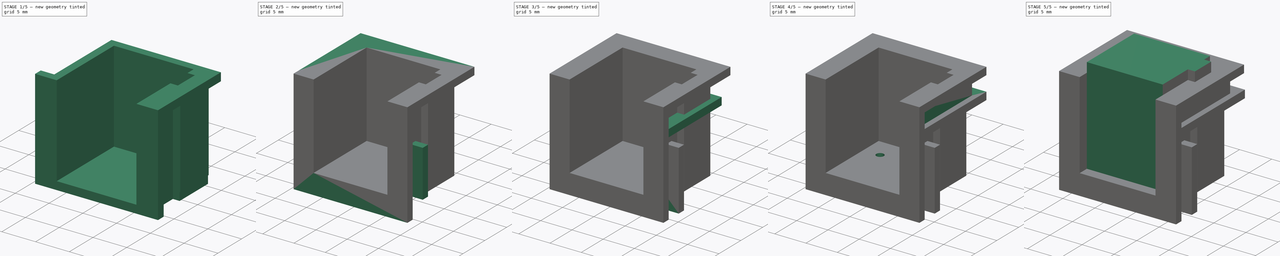
[diagram: build sequence overview — one tinted view per stage of 5, left to right]
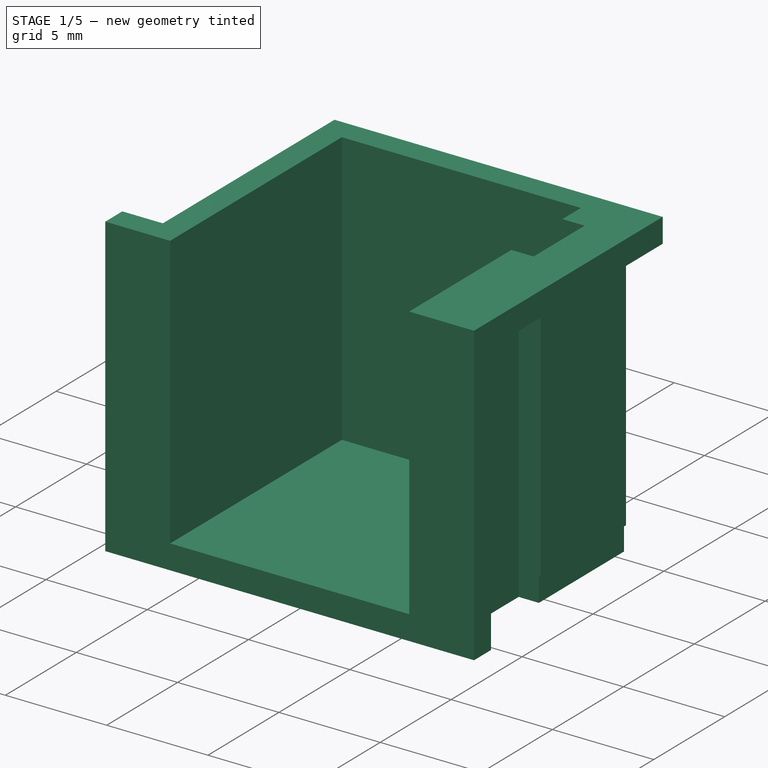
[diagram: stage 1 of 5 — iso view after this stage's code; geometry added in this stage tinted green]
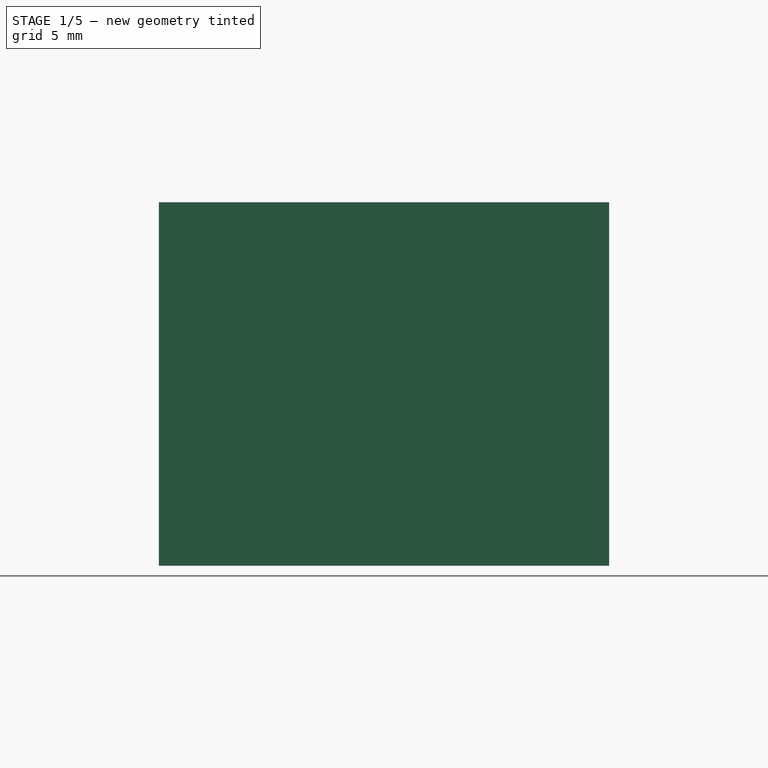
[diagram: stage 1 of 5 — front view after this stage's code; geometry added in this stage tinted green]
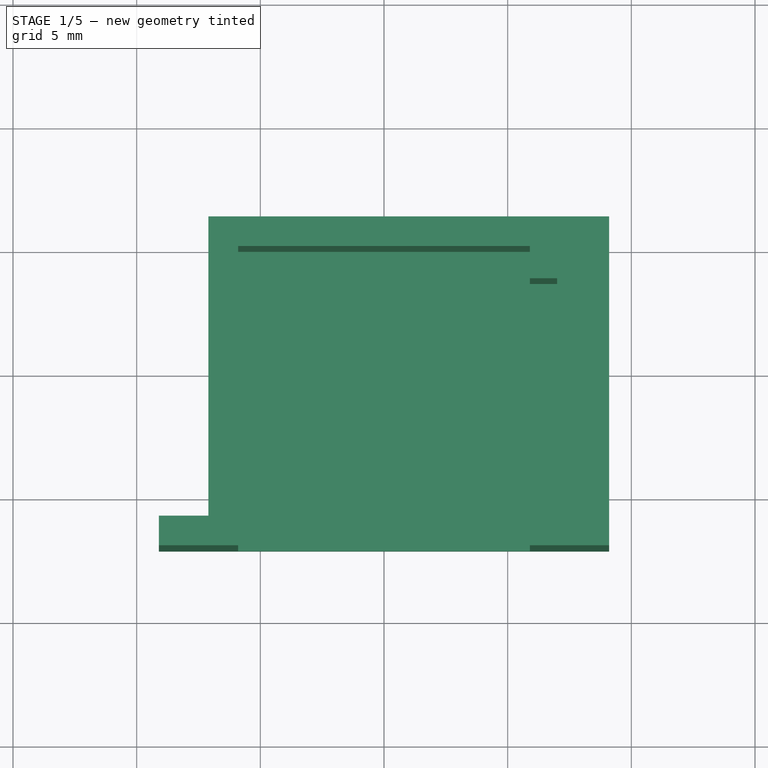
[diagram: stage 1 of 5 — top view after this stage's code; geometry added in this stage tinted green]
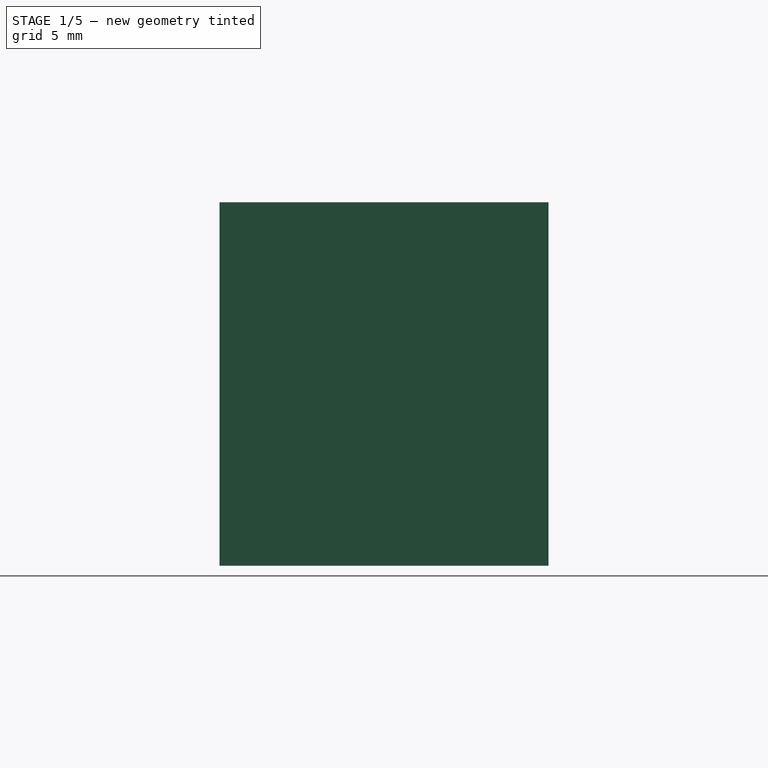
[diagram: stage 1 of 5 — right view after this stage's code; geometry added in this stage tinted green]
FCSTD DOCUMENT  (FreeCAD 0.16R6706 (Git))
Label: EibSteckeraufnahme V1.0
License: All rights reserved
LicenseURL: http://de.wikipedia.org/wiki/Alle_Rechte_vorbehalten
objects: Sketcher::SketchObject×27, PartDesign::Pad×22, PartDesign::Pocket×5
note: 81 computed .brp shape members not serialized (recipe doc carries the construction recipe); baked Part::Feature solids carry a one-line shape summary decoded from their .brp

FEATURE [Sketcher::SketchObject] Sketch003
  Placement = pos=(0,0,0) rot=(1,0,0;3.14159rad)
  sketch-geometry (8):
    g0: LineSegment StartX=-7.1 StartY=-1.2 StartZ=0 EndX=-7.1 EndY=12.1 EndZ=0
    g1: LineSegment StartX=-7.1 StartY=12.1 StartZ=0 EndX=7.1 EndY=12.1 EndZ=0
    g2: LineSegment StartX=7.1 StartY=12.1 StartZ=0 EndX=7.1 EndY=6.1 EndZ=0
    g3: LineSegment StartX=7.1 StartY=6.1 StartZ=0 EndX=8.1 EndY=6.1 EndZ=0
    g4: LineSegment StartX=8.1 StartY=6.1 StartZ=0 EndX=8.1 EndY=0.1 EndZ=0
    g5: LineSegment StartX=8.1 StartY=0.1 StartZ=0 EndX=7.1 EndY=0.1 EndZ=0
    g6: LineSegment StartX=7.1 StartY=0.1 StartZ=0 EndX=7.1 EndY=-1.2 EndZ=0
    g7: LineSegment StartX=7.1 StartY=-1.2 StartZ=0 EndX=-7.1 EndY=-1.2 EndZ=0
  constraints (24):
    c: Vertical(g0)
    c: Coincident(g0,g1)
    c: Horizontal(g1)
    c: Coincident(g1,g2)
    c: Vertical(g2)
    c: Coincident(g2,g3)
    c: Horizontal(g3)
    c: Coincident(g3,g4)
    c: Vertical(g4)
    c: Coincident(g4,g5)
    c: Horizontal(g5)
    c: Coincident(g5,g6)
    c: Vertical(g6)
    c: Coincident(g6,g7)
    c: Coincident(g7,g0)
    c: Horizontal(g7)
    c: DistanceX(g1) = 14.2
    c: DistanceX(g7) = -14.2
    c: DistanceY(g0) = 13.3
    c: DistanceX(g-1,g0) = -7.1
    c: DistanceY(g-1,g0) = -1.2
    c: DistanceY(g-1,g5) = 0.1
    c: DistanceY(g6,g2) = 7.3
    c: DistanceX(g5,g4) = 1
FEATURE [PartDesign::Pad] Pad003
  Length = 1.2
  Length2 = 100
  Placement = pos=(0,0,0) rot=(1,0,0;3.14159rad)
  Sketch = -> Sketch003
  Type = 0
FEATURE [Sketcher::SketchObject] Sketch004
  ExternalGeometry = -> [Pad003]
  Support = -> Pad003 [Face9]
  sketch-geometry (16):
    g0: LineSegment StartX=-7.1 StartY=-12.1 StartZ=0 EndX=-7.1 EndY=1.2 EndZ=0
    g1: LineSegment StartX=-7.1 StartY=1.2 StartZ=0 EndX=7.1 EndY=1.2 EndZ=0
    g2: LineSegment StartX=7.1 StartY=1.2 StartZ=0 EndX=7.1 EndY=-0.1 EndZ=0
    g3: LineSegment StartX=7.1 StartY=-0.1 StartZ=0 EndX=8.2 EndY=-0.1 EndZ=0
    g4: LineSegment StartX=8.2 StartY=-0.1 StartZ=0 EndX=8.2 EndY=-6.1 EndZ=0
    g5: LineSegment StartX=8.2 StartY=-6.1 StartZ=0 EndX=7.1 EndY=-6.1 EndZ=0
    g6: LineSegment StartX=7.1 StartY=-6.1 StartZ=0 EndX=7.1 EndY=-12.1 EndZ=0
    g7: LineSegment StartX=7.1 StartY=-12.1 StartZ=0 EndX=5.9 EndY=-12.1 EndZ=0
    g8: LineSegment StartX=5.9 StartY=-12.1 StartZ=0 EndX=5.9 EndY=-4.9 EndZ=0
    g9: LineSegment StartX=5.9 StartY=-4.9 StartZ=0 EndX=7 EndY=-4.9 EndZ=0
    g10: LineSegment StartX=7 StartY=-4.9 StartZ=0 EndX=7 EndY=-1.3 EndZ=0
    g11: LineSegment StartX=7 StartY=-1.3 StartZ=0 EndX=5.9 EndY=-1.3 EndZ=0
    g12: LineSegment StartX=5.9 StartY=-1.3 StartZ=0 EndX=5.9 EndY=0 EndZ=0
    g13: LineSegment StartX=5.9 StartY=0 StartZ=0 EndX=-5.9 EndY=0 EndZ=0
    g14: LineSegment StartX=-5.9 StartY=0 StartZ=0 EndX=-5.9 EndY=-12.1 EndZ=0
    g15: LineSegment StartX=-5.9 StartY=-12.1 StartZ=0 EndX=-7.1 EndY=-12.1 EndZ=0
  constraints (43):
    c: Coincident(g0,g-4)
    c: Vertical(g0)
    c: Coincident(g0,g1)
    c: Coincident(g1,g-3)
    c: Coincident(g1,g2)
    c: Coincident(g2,g-5)
    c: Coincident(g2,g3)
    c: Coincident(g5,g-7)
    c: Coincident(g5,g6)
    c: Coincident(g6,g-7)
    c: Coincident(g6,g7)
    c: Horizontal(g7)
    c: Coincident(g7,g8)
    c: Vertical(g8)
    c: Coincident(g8,g9)
    c: Horizontal(g9)
    c: Coincident(g9,g10)
    c: Vertical(g10)
    c: Coincident(g10,g11)
    c: Horizontal(g11)
    c: Coincident(g11,g12)
    c: Vertical(g12)
    c: Coincident(g12,g13)
    c: PointOnObject(g13,g-1)
    c: Horizontal(g13)
    c: Coincident(g13,g14)
    c: Vertical(g14)
    c: Coincident(g14,g15)
    c: Coincident(g15,g0)
    c: Horizontal(g15)
    c: DistanceX(g15,g15) = 1.2
    c: DistanceX(g7,g7) = 1.2
    c: DistanceY(g5,g9) = 1.2
    c: DistanceX(g9,g4) = 1.2
    c: DistanceY(g10,g2) = 1.2
    c: Coincident(g3,g4)
    c: Perpendicular(g4,g3)
    c: Coincident(g5,g4)
    c: DistanceX(g10,g3) = 1.2
    c: Perpendicular(g4,g5)
    c: DistanceX(g-5,g3) = 0.1
    c: Coincident(g0,g-4)
    c: DistanceX(g12,g2) = 1.2
FEATURE [PartDesign::Pad] Pad004
  Length = 13.5
  Length2 = 100
  Placement = pos=(0,0,0) rot=(1,0,0;3.14159rad)
  Sketch = -> Sketch004
  Type = 0
FEATURE [Sketcher::SketchObject] Sketch005
  ExternalGeometry = -> [Pad004]
  Placement = pos=(7.1,0,0) rot=(0.57735,-0.57735,0.57735;4.18879rad)
  Support = -> Pad004 [Face16]
  sketch-geometry (4):
    g0: LineSegment StartX=12.1 StartY=-13.5 StartZ=0 EndX=10.9 EndY=-13.5 EndZ=0
    g1: LineSegment StartX=10.9 StartY=-13.5 StartZ=0 EndX=10.9 EndY=1.2 EndZ=0
    g2: LineSegment StartX=10.9 StartY=1.2 StartZ=0 EndX=12.1 EndY=1.2 EndZ=0
    g3: LineSegment StartX=12.1 StartY=1.2 StartZ=0 EndX=12.1 EndY=-13.5 EndZ=0
  constraints (11):
    c: Coincident(g0,g1)
    c: Coincident(g1,g2)
    c: Coincident(g2,g3)
    c: Coincident(g3,g0)
    c: Horizontal(g0)
    c: Horizontal(g2)
    c: Vertical(g1)
    c: Vertical(g3)
    c: Coincident(g0,g-3)
    c: Coincident(g2,g-3)
    c: DistanceX(g0,g0) = 1.2
FEATURE [PartDesign::Pad] Pad005
  Length = 2
  Length2 = 100
  Placement = pos=(0,0,0) rot=(1,0,0;3.14159rad)
  Sketch = -> Sketch005
  Type = 0
FEATURE [Sketcher::SketchObject] Sketch006
  ExternalGeometry = -> [Pad005]
  Placement = pos=(-7.1,0,0) rot=(0.57735,0.57735,-0.57735;4.18879rad)
  Support = -> Pad005 [Face3]
  sketch-geometry (4):
    g0: LineSegment StartX=-12.1 StartY=-13.5 StartZ=0 EndX=-10.9 EndY=-13.5 EndZ=0
    g1: LineSegment StartX=-10.9 StartY=-13.5 StartZ=0 EndX=-10.9 EndY=1.2 EndZ=0
    g2: LineSegment StartX=-10.9 StartY=1.2 StartZ=0 EndX=-12.1 EndY=1.2 EndZ=0
    g3: LineSegment StartX=-12.1 StartY=1.2 StartZ=0 EndX=-12.1 EndY=-13.5 EndZ=0
  constraints (11):
    c: Coincident(g0,g1)
    c: Coincident(g1,g2)
    c: Coincident(g2,g3)
    c: Coincident(g3,g0)
    c: Horizontal(g0)
    c: Horizontal(g2)
    c: Vertical(g1)
    c: Vertical(g3)
    c: Coincident(g0,g-3)
    c: Coincident(g2,g-3)
    c: DistanceX(g2,g2) = 1.2
FEATURE [PartDesign::Pad] Pad006
  Length = 2
  Length2 = 100
  Placement = pos=(0,0,0) rot=(1,0,0;3.14159rad)
  Sketch = -> Sketch006
  Type = 0
FEATURE [Sketcher::SketchObject] Sketch007
  ExternalGeometry = -> [Pad006]
  Placement = pos=(0,0,13.5) rot=(0,0,1;0rad)
  Support = -> Pad006 [Face9]
  sketch-geometry (8):
    g0: LineSegment StartX=7.1 StartY=1.2 StartZ=0 EndX=7.1 EndY=-0.1 EndZ=0
    g1: LineSegment StartX=7.1 StartY=-0.1 StartZ=0 EndX=8.2 EndY=-0.1 EndZ=0
    g2: LineSegment StartX=8.2 StartY=-0.1 StartZ=0 EndX=8.2 EndY=-6.1 EndZ=0
    g3: LineSegment StartX=8.2 StartY=-6.1 StartZ=0 EndX=7.1 EndY=-6.1 EndZ=0
    g4: LineSegment StartX=7.1 StartY=-6.1 StartZ=0 EndX=7.1 EndY=-10.9 EndZ=0
    g5: LineSegment StartX=7.1 StartY=-10.9 StartZ=0 EndX=9.1 EndY=-10.9 EndZ=0
    g6: LineSegment StartX=9.1 StartY=-10.9 StartZ=0 EndX=9.1 EndY=1.2 EndZ=0
    g7: LineSegment StartX=9.1 StartY=1.2 StartZ=0 EndX=7.1 EndY=1.2 EndZ=0
  constraints (18):
    c: Coincident(g-5,g0)
    c: Coincident(g0,g-5)
    c: Coincident(g0,g1)
    c: Coincident(g1,g-3)
    c: Coincident(g1,g2)
    c: Coincident(g2,g-3)
    c: Coincident(g2,g3)
    c: Horizontal(g3)
    c: Coincident(g3,g4)
    c: Coincident(g4,g-4)
    c: Vertical(g4)
    c: Coincident(g4,g5)
    c: Coincident(g5,g-4)
    c: Coincident(g5,g6)
    c: Vertical(g6)
    c: Coincident(g6,g7)
    c: Coincident(g7,g0)
    c: Perpendicular(g6,g7)
FEATURE [PartDesign::Pad] Pad007
  Length = 1.2
  Length2 = 100
  Placement = pos=(0,0,0) rot=(1,0,0;3.14159rad)
  Reversed = true
  Sketch = -> Sketch007
  Type = 0
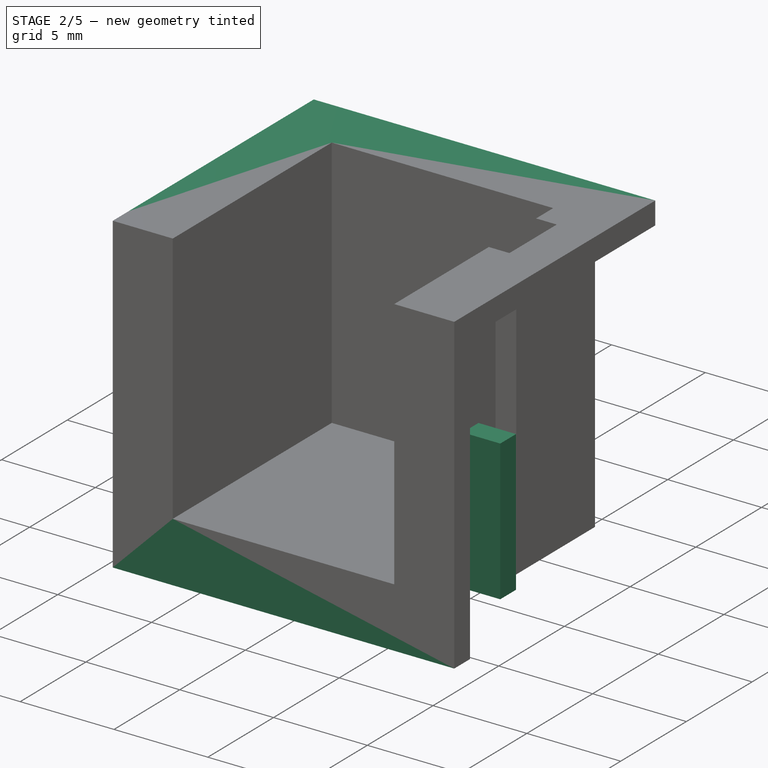
[diagram: stage 2 of 5 — iso view after this stage's code; geometry added in this stage tinted green]
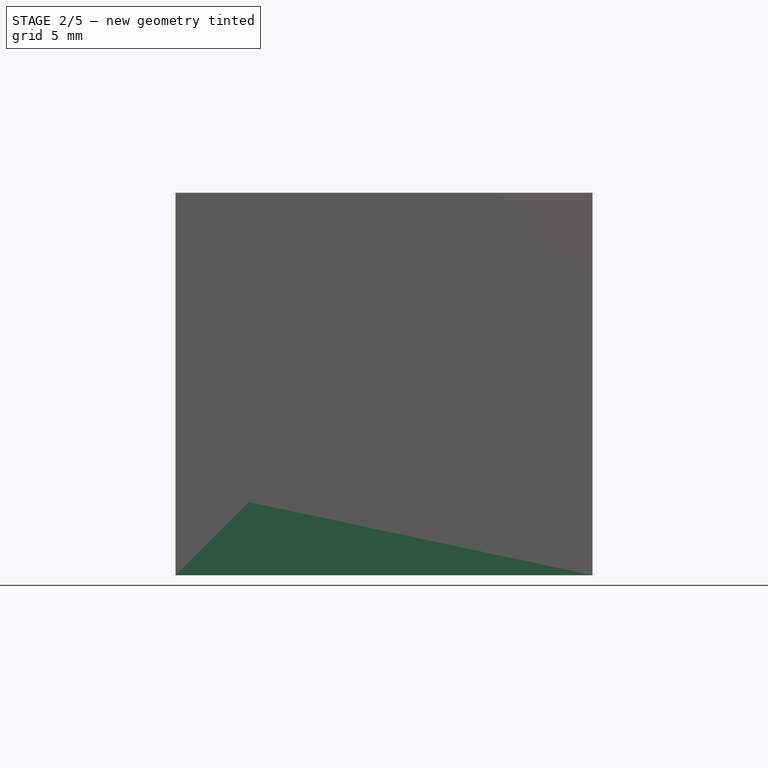
[diagram: stage 2 of 5 — front view after this stage's code; geometry added in this stage tinted green]
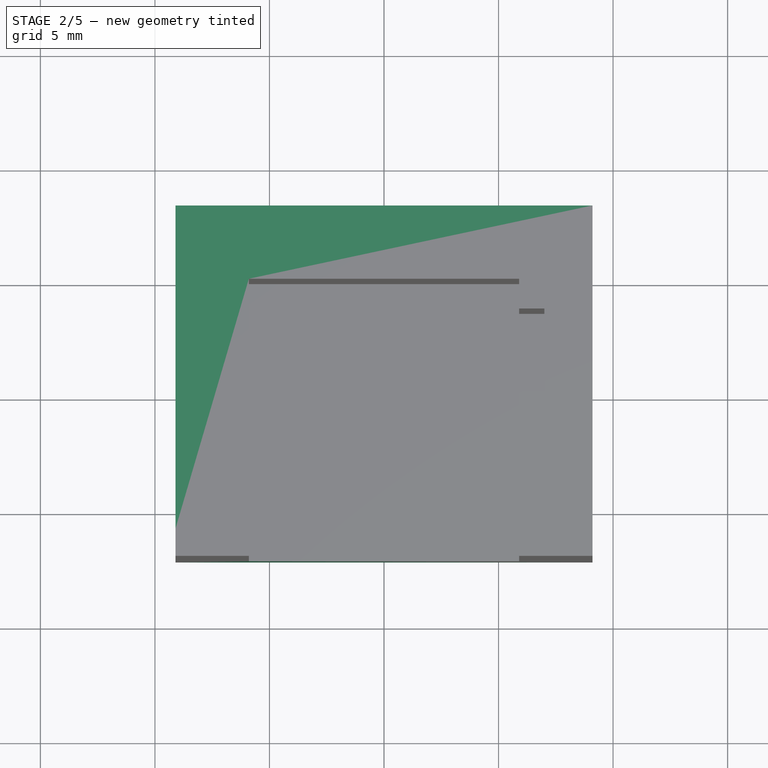
[diagram: stage 2 of 5 — top view after this stage's code; geometry added in this stage tinted green]
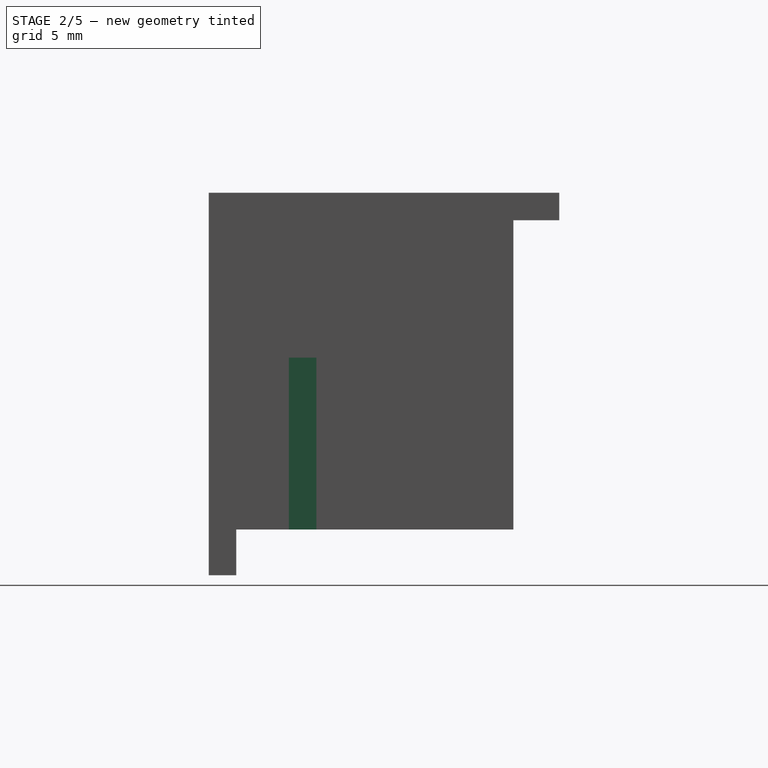
[diagram: stage 2 of 5 — right view after this stage's code; geometry added in this stage tinted green]
FEATURE [Sketcher::SketchObject] Sketch008
  ExternalGeometry = -> [Pad007]
  Placement = pos=(0,0,13.5) rot=(0,0,1;0rad)
  Support = -> Pad007 [Face23]
  sketch-geometry (4):
    g0: LineSegment StartX=-9.1 StartY=-10.9 StartZ=0 EndX=-7.1 EndY=-10.9 EndZ=0
    g1: LineSegment StartX=-7.1 StartY=-10.9 StartZ=0 EndX=-7.1 EndY=1.2 EndZ=0
    g2: LineSegment StartX=-7.1 StartY=1.2 StartZ=0 EndX=-9.1 EndY=1.2 EndZ=0
    g3: LineSegment StartX=-9.1 StartY=1.2 StartZ=0 EndX=-9.1 EndY=-10.9 EndZ=0
  constraints (9):
    c: Coincident(g-3,g0)
    c: Coincident(g0,g-4)
    c: Coincident(g0,g1)
    c: Coincident(g1,g-4)
    c: Coincident(g1,g2)
    c: Horizontal(g2)
    c: Coincident(g2,g3)
    c: Coincident(g3,g0)
    c: Perpendicular(g2,g3)
FEATURE [PartDesign::Pad] Pad008
  Length = 1.2
  Length2 = 100
  Placement = pos=(0,0,0) rot=(1,0,0;3.14159rad)
  Reversed = true
  Sketch = -> Sketch008
  Type = 0
FEATURE [Sketcher::SketchObject] Sketch009
  ExternalGeometry = -> [Pad008]
  Placement = pos=(0,1.2,0) rot=(-1,0,0;1.5708rad)
  Support = -> Pad008 [Face26]
  sketch-geometry (4):
    g0: LineSegment StartX=-9.1 StartY=-13.5 StartZ=0 EndX=-9.1 EndY=-12.3 EndZ=0
    g1: LineSegment StartX=-9.1 StartY=-12.3 StartZ=0 EndX=9.1 EndY=-12.3 EndZ=0
    g2: LineSegment StartX=9.1 StartY=-12.3 StartZ=0 EndX=9.1 EndY=-13.5 EndZ=0
    g3: LineSegment StartX=9.1 StartY=-13.5 StartZ=0 EndX=-9.1 EndY=-13.5 EndZ=0
  constraints (9):
    c: Coincident(g-3,g0)
    c: Coincident(g0,g-4)
    c: Coincident(g0,g1)
    c: Horizontal(g1)
    c: Coincident(g1,g2)
    c: Coincident(g2,g-3)
    c: Vertical(g2)
    c: Coincident(g2,g3)
    c: Coincident(g3,g0)
FEATURE [PartDesign::Pad] Pad009
  Length = 2
  Length2 = 100
  Placement = pos=(0,0,0) rot=(1,0,0;3.14159rad)
  Sketch = -> Sketch009
  Type = 0
FEATURE [Sketcher::SketchObject] Sketch010
  ExternalGeometry = -> [Pad009]
  Placement = pos=(0,0,-1.2) rot=(1,0,0;3.14159rad)
  Support = -> Pad009 [Face10]
  sketch-geometry (4):
    g0: LineSegment StartX=-9.1 StartY=12.1 StartZ=0 EndX=9.1 EndY=12.1 EndZ=0
    g1: LineSegment StartX=9.1 StartY=12.1 StartZ=0 EndX=9.1 EndY=10.9 EndZ=0
    g2: LineSegment StartX=9.1 StartY=10.9 StartZ=0 EndX=-9.1 EndY=10.9 EndZ=0
    g3: LineSegment StartX=-9.1 StartY=10.9 StartZ=0 EndX=-9.1 EndY=12.1 EndZ=0
  constraints (10):
    c: Coincident(g0,g1)
    c: Coincident(g1,g2)
    c: Coincident(g2,g3)
    c: Coincident(g3,g0)
    c: Horizontal(g0)
    c: Horizontal(g2)
    c: Vertical(g1)
    c: Vertical(g3)
    c: Coincident(g0,g-3)
    c: Coincident(g1,g-4)
FEATURE [PartDesign::Pad] Pad010
  Length = 2
  Length2 = 100
  Placement = pos=(0,0,0) rot=(1,0,0;3.14159rad)
  Sketch = -> Sketch010
  Type = 0
FEATURE [Sketcher::SketchObject] Sketch011
  ExternalGeometry = -> [Pad010]
  Placement = pos=(8.1,0,0) rot=(0.57735,-0.57735,0.57735;4.18879rad)
  Support = -> Pad010 [Face20]
  sketch-geometry (4):
    g0: LineSegment StartX=0.1 StartY=1.2 StartZ=0 EndX=6.1 EndY=1.2 EndZ=0
    g1: LineSegment StartX=6.1 StartY=1.2 StartZ=0 EndX=6.1 EndY=0 EndZ=0
    g2: LineSegment StartX=6.1 StartY=0 StartZ=0 EndX=0.1 EndY=0 EndZ=0
    g3: LineSegment StartX=0.1 StartY=0 StartZ=0 EndX=0.1 EndY=1.2 EndZ=0
  constraints (10):
    c: Coincident(g0,g1)
    c: Coincident(g1,g2)
    c: Coincident(g2,g3)
    c: Coincident(g3,g0)
    c: Horizontal(g0)
    c: Horizontal(g2)
    c: Vertical(g1)
    c: Vertical(g3)
    c: Coincident(g0,g-4)
    c: Coincident(g1,g-3)
FEATURE [PartDesign::Pad] Pad011
  Length = 0.1
  Length2 = 100
  Placement = pos=(0,0,0) rot=(1,0,0;3.14159rad)
  Sketch = -> Sketch011
  Type = 0
FEATURE [Sketcher::SketchObject] Sketch012
  ExternalGeometry = -> [Pad011]
  Placement = pos=(7.1,0,0) rot=(0.57735,-0.57735,0.57735;4.18879rad)
  Support = -> Pad011 [Face17]
  sketch-geometry (4):
    g0: LineSegment StartX=8.6 StartY=1.2 StartZ=0 EndX=7.4 EndY=1.2 EndZ=0
    g1: LineSegment StartX=7.4 StartY=1.2 StartZ=0 EndX=7.4 EndY=-6.3 EndZ=0
    g2: LineSegment StartX=7.4 StartY=-6.3 StartZ=0 EndX=8.6 EndY=-6.3 EndZ=0
    g3: LineSegment StartX=8.6 StartY=-6.3 StartZ=0 EndX=8.6 EndY=1.2 EndZ=0
  constraints (12):
    c: Coincident(g0,g1)
    c: Coincident(g1,g2)
    c: Coincident(g2,g3)
    c: Coincident(g3,g0)
    c: Horizontal(g0)
    c: Horizontal(g2)
    c: Vertical(g1)
    c: Vertical(g3)
    c: PointOnObject(g0,g-4)
    c: DistanceY(g-3,g2) = 6
    c: DistanceX(g2,g2) = 1.2
    c: DistanceX(g0,g-4) = 2.3
FEATURE [PartDesign::Pad] Pad012
  Length = 2
  Length2 = 100
  Placement = pos=(0,0,0) rot=(1,0,0;3.14159rad)
  Sketch = -> Sketch012
  Type = 0
FEATURE [Sketcher::SketchObject] Sketch013
  ExternalGeometry = -> [Pad012]
  Placement = pos=(-7.1,0,0) rot=(0.57735,0.57735,-0.57735;4.18879rad)
  Support = -> Pad012 [Face18]
  sketch-geometry (4):
    g0: LineSegment StartX=-7.4 StartY=-6.3 StartZ=0 EndX=-8.6 EndY=-6.3 EndZ=0
    g1: LineSegment StartX=-8.6 StartY=-6.3 StartZ=0 EndX=-8.6 EndY=1.2 EndZ=0
    g2: LineSegment StartX=-8.6 StartY=1.2 StartZ=0 EndX=-7.4 EndY=1.2 EndZ=0
    g3: LineSegment StartX=-7.4 StartY=1.2 StartZ=0 EndX=-7.4 EndY=-6.3 EndZ=0
  constraints (12):
    c: Coincident(g0,g1)
    c: Coincident(g1,g2)
    c: Coincident(g2,g3)
    c: Coincident(g3,g0)
    c: Horizontal(g0)
    c: Horizontal(g2)
    c: Vertical(g1)
    c: Vertical(g3)
    c: PointOnObject(g1,g-4)
    c: DistanceX(g-4,g1) = 2.3
    c: DistanceX(g0,g0) = 1.2
    c: DistanceY(g-3,g0) = 6
FEATURE [PartDesign::Pad] Pad013
  Length = 2
  Length2 = 100
  Placement = pos=(0,0,0) rot=(1,0,0;3.14159rad)
  Sketch = -> Sketch013
  Type = 0
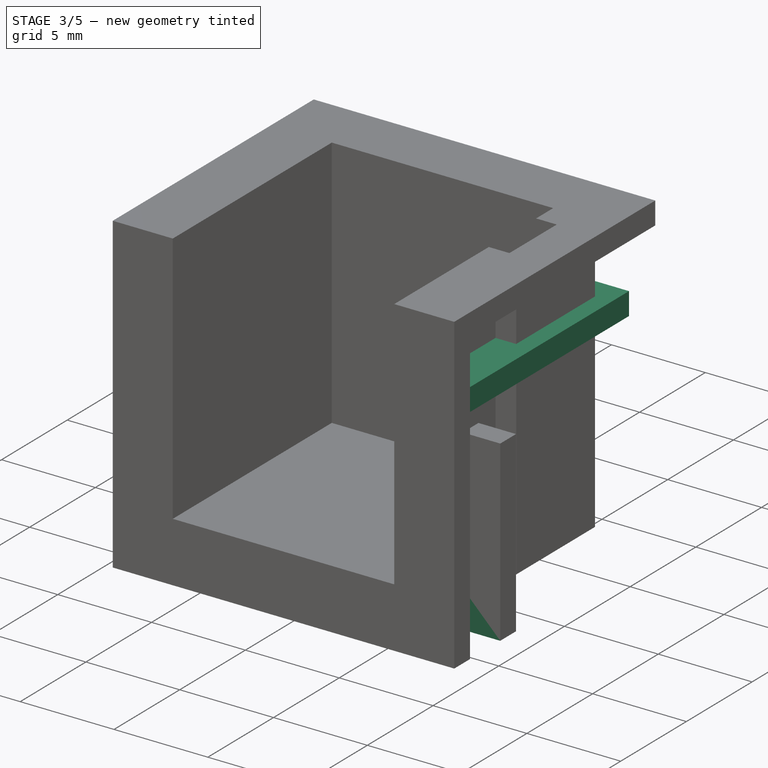
[diagram: stage 3 of 5 — iso view after this stage's code; geometry added in this stage tinted green]
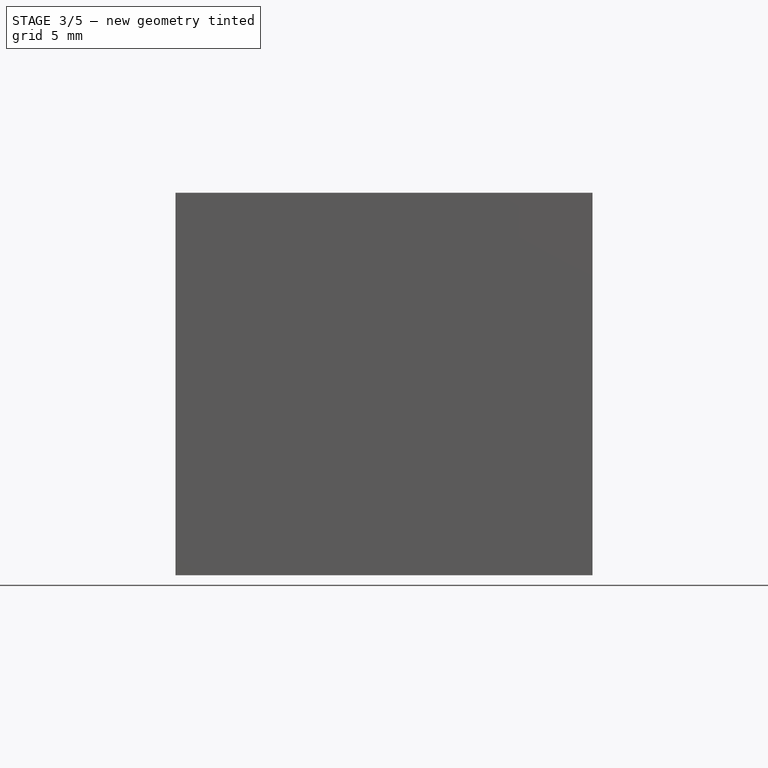
[diagram: stage 3 of 5 — front view after this stage's code; geometry added in this stage tinted green]
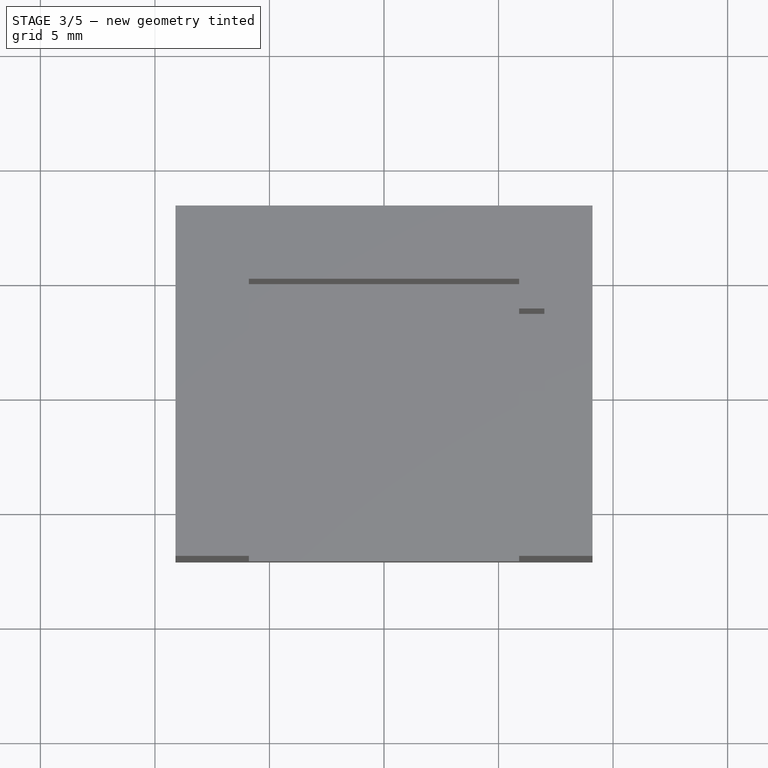
[diagram: stage 3 of 5 — top view after this stage's code; geometry added in this stage tinted green]
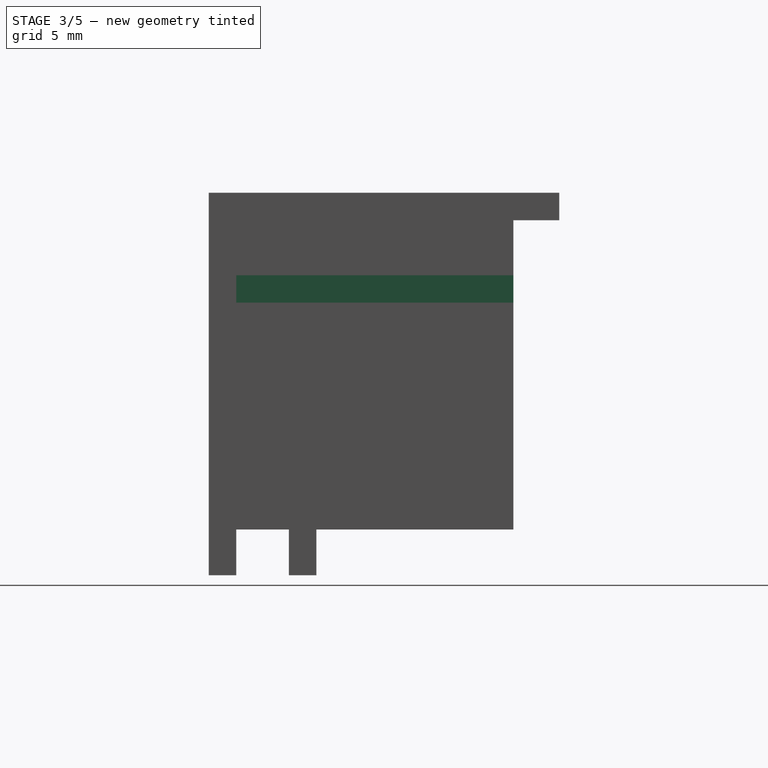
[diagram: stage 3 of 5 — right view after this stage's code; geometry added in this stage tinted green]
FEATURE [Sketcher::SketchObject] Sketch014
  ExternalGeometry = -> [Pad013]
  Placement = pos=(0,0,-1.2) rot=(1,0,0;3.14159rad)
  Support = -> Pad013 [Face32]
  sketch-geometry (4):
    g0: LineSegment StartX=-9.1 StartY=8.6 StartZ=0 EndX=9.1 EndY=8.6 EndZ=0
    g1: LineSegment StartX=9.1 StartY=8.6 StartZ=0 EndX=9.1 EndY=7.4 EndZ=0
    g2: LineSegment StartX=9.1 StartY=7.4 StartZ=0 EndX=-9.1 EndY=7.4 EndZ=0
    g3: LineSegment StartX=-9.1 StartY=7.4 StartZ=0 EndX=-9.1 EndY=8.6 EndZ=0
  constraints (10):
    c: Coincident(g0,g1)
    c: Coincident(g1,g2)
    c: Coincident(g2,g3)
    c: Coincident(g3,g0)
    c: Horizontal(g0)
    c: Horizontal(g2)
    c: Vertical(g1)
    c: Vertical(g3)
    c: Coincident(g0,g-3)
    c: Coincident(g1,g-4)
FEATURE [PartDesign::Pad] Pad014
  Length = 2
  Length2 = 100
  Placement = pos=(0,0,0) rot=(1,0,0;3.14159rad)
  Sketch = -> Sketch014
  Type = 0
FEATURE [Sketcher::SketchObject] Sketch015
  ExternalGeometry = -> [Pad014]
  Placement = pos=(-7.1,0,0) rot=(0.57735,0.57735,-0.57735;4.18879rad)
  Support = -> Pad014 [Face20]
  sketch-geometry (4):
    g0: LineSegment StartX=1.2 StartY=-9.9 StartZ=0 EndX=-10.9 EndY=-9.9 EndZ=0
    g1: LineSegment StartX=-10.9 StartY=-9.9 StartZ=0 EndX=-10.9 EndY=-8.7 EndZ=0
    g2: LineSegment StartX=-10.9 StartY=-8.7 StartZ=0 EndX=1.2 EndY=-8.7 EndZ=0
    g3: LineSegment StartX=1.2 StartY=-8.7 StartZ=0 EndX=1.2 EndY=-9.9 EndZ=0
  constraints (12):
    c: Coincident(g0,g1)
    c: Coincident(g1,g2)
    c: Coincident(g2,g3)
    c: Coincident(g3,g0)
    c: Horizontal(g0)
    c: Horizontal(g2)
    c: Vertical(g1)
    c: Vertical(g3)
    c: PointOnObject(g0,g-4)
    c: PointOnObject(g1,g-5)
    c: DistanceY(g0,g2) = 1.2
    c: DistanceY(g-4,g0) = 2.4
FEATURE [PartDesign::Pad] Pad015
  Length = 1.5
  Length2 = 100
  Placement = pos=(0,0,0) rot=(1,0,0;3.14159rad)
  Sketch = -> Sketch015
  Type = 0
FEATURE [Sketcher::SketchObject] Sketch016
  ExternalGeometry = -> [Pad015]
  Placement = pos=(7.1,0,0) rot=(0.57735,-0.57735,0.57735;4.18879rad)
  Support = -> Pad015 [Face7]
  sketch-geometry (4):
    g0: LineSegment StartX=6.1 StartY=-8.7 StartZ=0 EndX=10.9 EndY=-8.7 EndZ=0
    g1: LineSegment StartX=10.9 StartY=-8.7 StartZ=0 EndX=10.9 EndY=-9.9 EndZ=0
    g2: LineSegment StartX=10.9 StartY=-9.9 StartZ=0 EndX=6.1 EndY=-9.9 EndZ=0
    g3: LineSegment StartX=6.1 StartY=-9.9 StartZ=0 EndX=6.1 EndY=-8.7 EndZ=0
  constraints (12):
    c: Coincident(g0,g1)
    c: Coincident(g1,g2)
    c: Coincident(g2,g3)
    c: Coincident(g3,g0)
    c: Horizontal(g0)
    c: Horizontal(g2)
    c: Vertical(g1)
    c: Vertical(g3)
    c: PointOnObject(g0,g-4)
    c: PointOnObject(g0,g-3)
    c: DistanceY(g1,g0) = 1.2
    c: DistanceY(g-3,g1) = 2.4
FEATURE [PartDesign::Pad] Pad016
  Length = 2
  Length2 = 100
  Placement = pos=(0,0,0) rot=(1,0,0;3.14159rad)
  Sketch = -> Sketch016
  Type = 0
FEATURE [Sketcher::SketchObject] Sketch017
  ExternalGeometry = -> [Pad016]
  Placement = pos=(7.1,0,0) rot=(0.57735,-0.57735,0.57735;4.18879rad)
  Support = -> Pad016 [Face19]
  sketch-geometry (4):
    g0: LineSegment StartX=-1.2 StartY=-8.7 StartZ=0 EndX=0.1 EndY=-8.7 EndZ=0
    g1: LineSegment StartX=0.1 StartY=-8.7 StartZ=0 EndX=0.1 EndY=-9.9 EndZ=0
    g2: LineSegment StartX=0.1 StartY=-9.9 StartZ=0 EndX=-1.2 EndY=-9.9 EndZ=0
    g3: LineSegment StartX=-1.2 StartY=-9.9 StartZ=0 EndX=-1.2 EndY=-8.7 EndZ=0
  constraints (12):
    c: Coincident(g0,g1)
    c: Coincident(g1,g2)
    c: Coincident(g2,g3)
    c: Coincident(g3,g0)
    c: Horizontal(g0)
    c: Horizontal(g2)
    c: Vertical(g1)
    c: Vertical(g3)
    c: PointOnObject(g0,g-3)
    c: PointOnObject(g1,g-4)
    c: DistanceY(g-3,g2) = 2.4
    c: DistanceY(g2,g0) = 1.2
FEATURE [PartDesign::Pad] Pad017
  Length = 2
  Length2 = 100
  Placement = pos=(0,0,0) rot=(1,0,0;3.14159rad)
  Sketch = -> Sketch017
  Type = 0
FEATURE [Sketcher::SketchObject] Sketch018
  ExternalGeometry = -> [Pad017]
  Placement = pos=(8.2,0,0) rot=(0.57735,-0.57735,0.57735;4.18879rad)
  Support = -> Pad017 [Face16]
  sketch-geometry (4):
    g0: LineSegment StartX=0.1 StartY=-8.7 StartZ=0 EndX=6.1 EndY=-8.7 EndZ=0
    g1: LineSegment StartX=6.1 StartY=-8.7 StartZ=0 EndX=6.1 EndY=-9.9 EndZ=0
    g2: LineSegment StartX=6.1 StartY=-9.9 StartZ=0 EndX=0.1 EndY=-9.9 EndZ=0
    g3: LineSegment StartX=0.1 StartY=-9.9 StartZ=0 EndX=0.1 EndY=-8.7 EndZ=0
  constraints (10):
    c: Coincident(g0,g1)
    c: Coincident(g1,g2)
    c: Coincident(g2,g3)
    c: Coincident(g3,g0)
    c: Horizontal(g0)
    c: Horizontal(g2)
    c: Vertical(g1)
    c: Vertical(g3)
    c: Coincident(g0,g-5)
    c: Coincident(g1,g-4)
FEATURE [PartDesign::Pad] Pad018
  Length = 0.9
  Length2 = 100
  Placement = pos=(0,0,0) rot=(1,0,0;3.14159rad)
  Sketch = -> Sketch018
  Type = 0
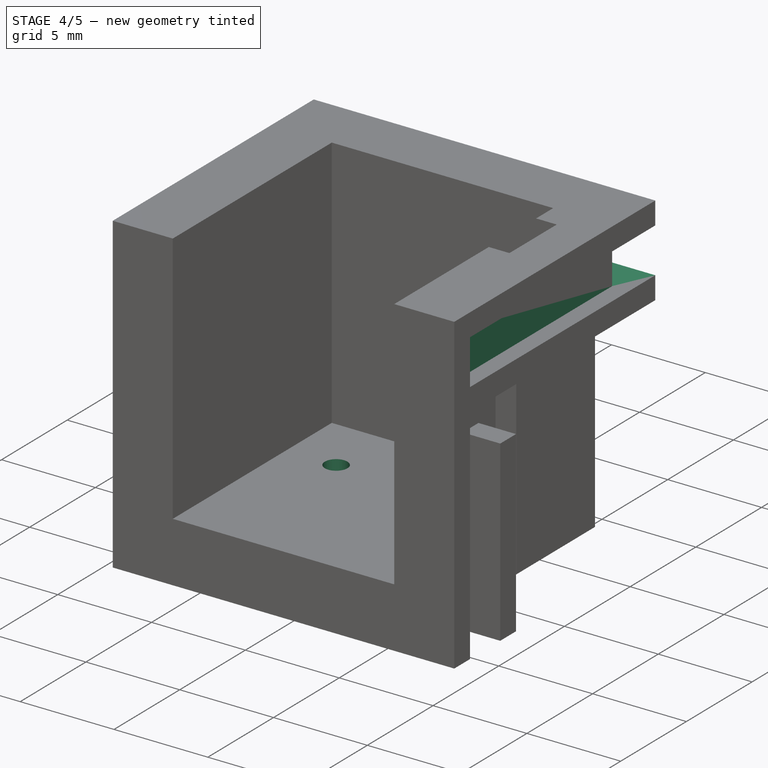
[diagram: stage 4 of 5 — iso view after this stage's code; geometry added in this stage tinted green]
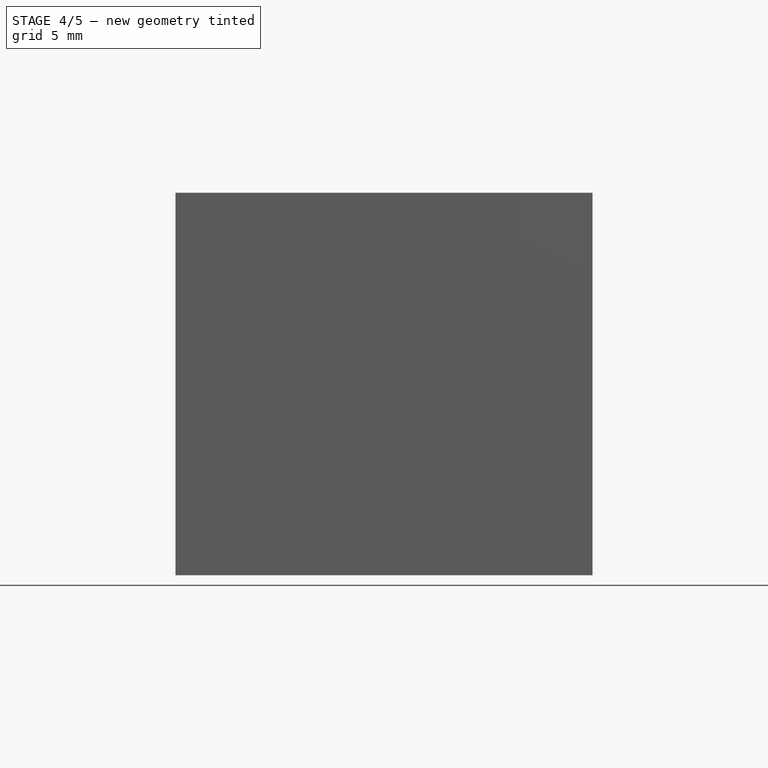
[diagram: stage 4 of 5 — front view after this stage's code; geometry added in this stage tinted green]
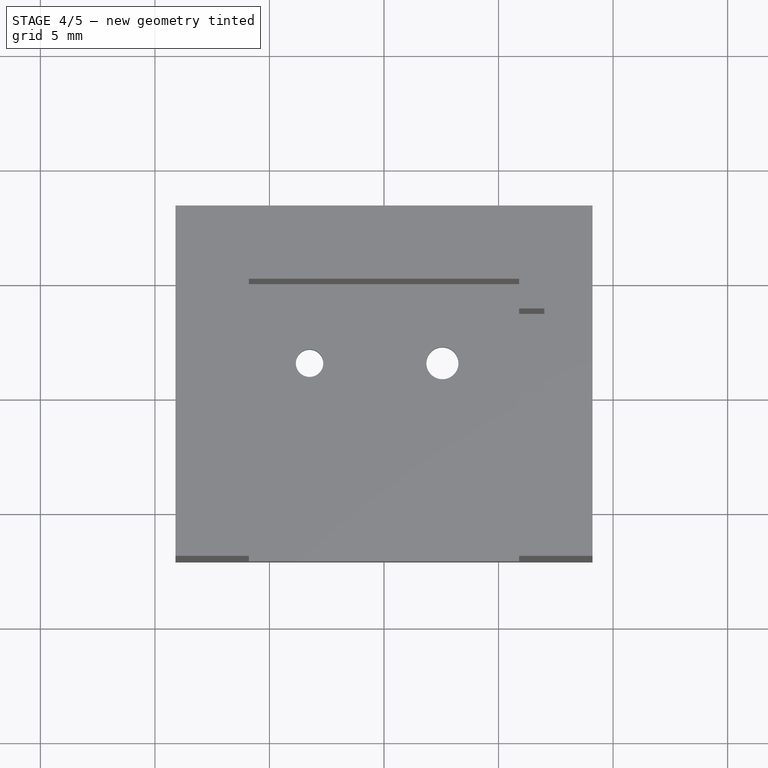
[diagram: stage 4 of 5 — top view after this stage's code; geometry added in this stage tinted green]
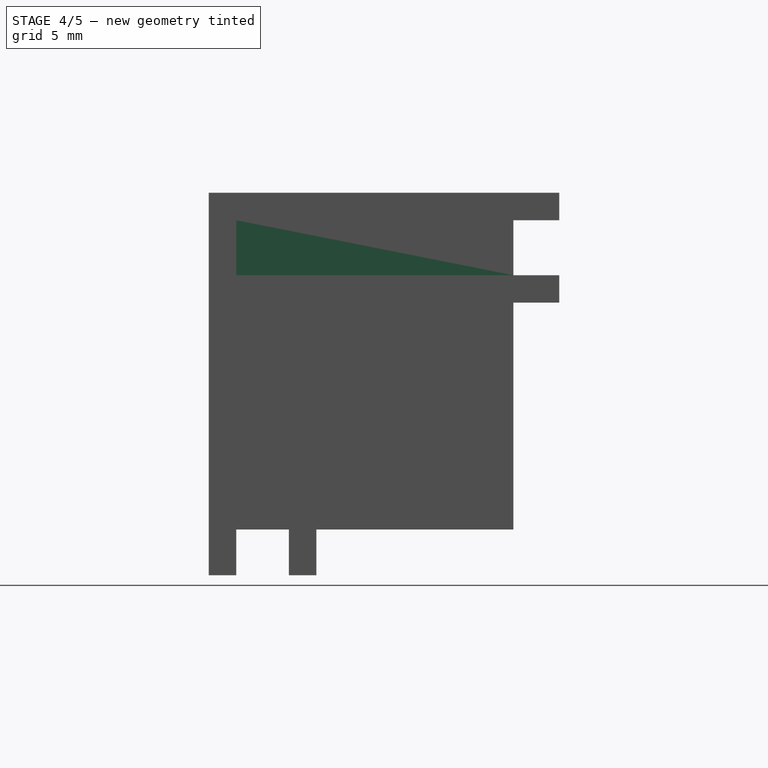
[diagram: stage 4 of 5 — right view after this stage's code; geometry added in this stage tinted green]
FEATURE [Sketcher::SketchObject] Sketch019
  ExternalGeometry = -> [Pad018]
  Placement = pos=(0,1.2,0) rot=(-1,0,0;1.5708rad)
  Support = -> Pad018 [Face15]
  sketch-geometry (4):
    g0: LineSegment StartX=-8.6 StartY=-8.7 StartZ=0 EndX=9.1 EndY=-8.7 EndZ=0
    g1: LineSegment StartX=9.1 StartY=-8.7 StartZ=0 EndX=9.1 EndY=-9.9 EndZ=0
    g2: LineSegment StartX=9.1 StartY=-9.9 StartZ=0 EndX=-8.6 EndY=-9.9 EndZ=0
    g3: LineSegment StartX=-8.6 StartY=-9.9 StartZ=0 EndX=-8.6 EndY=-8.7 EndZ=0
  constraints (10):
    c: Coincident(g0,g1)
    c: Coincident(g1,g2)
    c: Coincident(g2,g3)
    c: Coincident(g3,g0)
    c: Horizontal(g0)
    c: Horizontal(g2)
    c: Vertical(g1)
    c: Vertical(g3)
    c: Coincident(g0,g-3)
    c: Coincident(g1,g-4)
FEATURE [PartDesign::Pad] Pad019
  Length = 2
  Length2 = 100
  Placement = pos=(0,0,0) rot=(1,0,0;3.14159rad)
  Sketch = -> Sketch019
  Type = 0
FEATURE [Sketcher::SketchObject] Sketch020
  ExternalGeometry = -> [Pad019]
  Placement = pos=(0,0,-1.2) rot=(1,0,0;3.14159rad)
  Support = -> Pad019 [Face13]
  sketch-geometry (1):
    g0: Circle CenterX=-3.25 CenterY=3.45 CenterZ=0 NormalX=0 NormalY=0 NormalZ=1 Radius=0.6
  constraints (3):
    c: Radius(g0) = 0.6
    c: DistanceX(g-3,g0) = 3.85
    c: DistanceY(g0,g-3) = 3.95
FEATURE [PartDesign::Pocket] Pocket
  Length = 5
  Placement = pos=(0,0,0) rot=(1,0,0;3.14159rad)
  Sketch = -> Sketch020
  Type = 0
FEATURE [Sketcher::SketchObject] Sketch021
  ExternalGeometry = -> [Pocket]
  Placement = pos=(0,0,-1.2) rot=(1,0,0;3.14159rad)
  Support = -> Pocket [Face27]
  sketch-geometry (1):
    g0: Circle CenterX=2.55 CenterY=3.45 CenterZ=0 NormalX=0 NormalY=0 NormalZ=1 Radius=0.6
  constraints (3):
    c: Radius(g0) = 0.6
    c: DistanceX(g0,g-3) = 5.65
    c: DistanceY(g0,g-3) = 2.65
FEATURE [PartDesign::Pocket] Pocket001
  Length = 5
  Placement = pos=(0,0,0) rot=(1,0,0;3.14159rad)
  Sketch = -> Sketch021
  Type = 0
FEATURE [Sketcher::SketchObject] Sketch022
  ExternalGeometry = -> [Pocket001]
  Placement = pos=(7.1,0,0) rot=(0.57735,-0.57735,0.57735;4.18879rad)
  Support = -> Pocket001 [Face26]
  sketch-geometry (4):
    g0: LineSegment StartX=10.9 StartY=-12.3 StartZ=0 EndX=6.1 EndY=-12.3 EndZ=0
    g1: LineSegment StartX=6.1 StartY=-12.3 StartZ=0 EndX=6.1 EndY=-9.9 EndZ=0
    g2: LineSegment StartX=6.1 StartY=-9.9 StartZ=0 EndX=10.9 EndY=-9.9 EndZ=0
    g3: LineSegment StartX=10.9 StartY=-9.9 StartZ=0 EndX=10.9 EndY=-12.3 EndZ=0
  constraints (10):
    c: Coincident(g0,g1)
    c: Coincident(g1,g2)
    c: Coincident(g2,g3)
    c: Coincident(g3,g0)
    c: Horizontal(g0)
    c: Horizontal(g2)
    c: Vertical(g1)
    c: Vertical(g3)
    c: Coincident(g0,g-4)
    c: Coincident(g-3,g1)
FEATURE [PartDesign::Pad] Pad020
  Length = 1.1
  Length2 = 100
  Placement = pos=(0,0,0) rot=(1,0,0;3.14159rad)
  Sketch = -> Sketch022
  Type = 0
FEATURE [Sketcher::SketchObject] Sketch023
  ExternalGeometry = -> [Pad020]
  Placement = pos=(7.1,0,0) rot=(0.57735,-0.57735,0.57735;4.18879rad)
  Support = -> Pad020 [Face21]
  sketch-geometry (4):
    g0: LineSegment StartX=-1.2 StartY=-9.9 StartZ=0 EndX=0.1 EndY=-9.9 EndZ=0
    g1: LineSegment StartX=0.1 StartY=-9.9 StartZ=0 EndX=0.1 EndY=-12.3 EndZ=0
    g2: LineSegment StartX=0.1 StartY=-12.3 StartZ=0 EndX=-1.2 EndY=-12.3 EndZ=0
    g3: LineSegment StartX=-1.2 StartY=-12.3 StartZ=0 EndX=-1.2 EndY=-9.9 EndZ=0
  constraints (10):
    c: Coincident(g0,g1)
    c: Coincident(g1,g2)
    c: Coincident(g2,g3)
    c: Coincident(g3,g0)
    c: Horizontal(g0)
    c: Horizontal(g2)
    c: Vertical(g1)
    c: Vertical(g3)
    c: Coincident(g0,g-4)
    c: Coincident(g1,g-3)
FEATURE [PartDesign::Pad] Pad021
  Length = 1.1
  Length2 = 100
  Placement = pos=(0,0,0) rot=(1,0,0;3.14159rad)
  Sketch = -> Sketch023
  Type = 0
FEATURE [Sketcher::SketchObject] Sketch024
  ExternalGeometry = -> [Pad021]
  Placement = pos=(0,0,-1.2) rot=(1,0,0;3.14159rad)
  Support = -> Pad021 [Face21]
  sketch-geometry (1):
    g0: Circle CenterX=2.55 CenterY=3.45 CenterZ=0 NormalX=0 NormalY=0 NormalZ=1 Radius=0.7
  constraints (2):
    c: Coincident(g0,g-3)
    c: Radius(g0) = 0.7
FEATURE [PartDesign::Pocket] Pocket002
  Length = 2
  Placement = pos=(0,0,0) rot=(1,0,0;3.14159rad)
  Sketch = -> Sketch024
  Type = 0
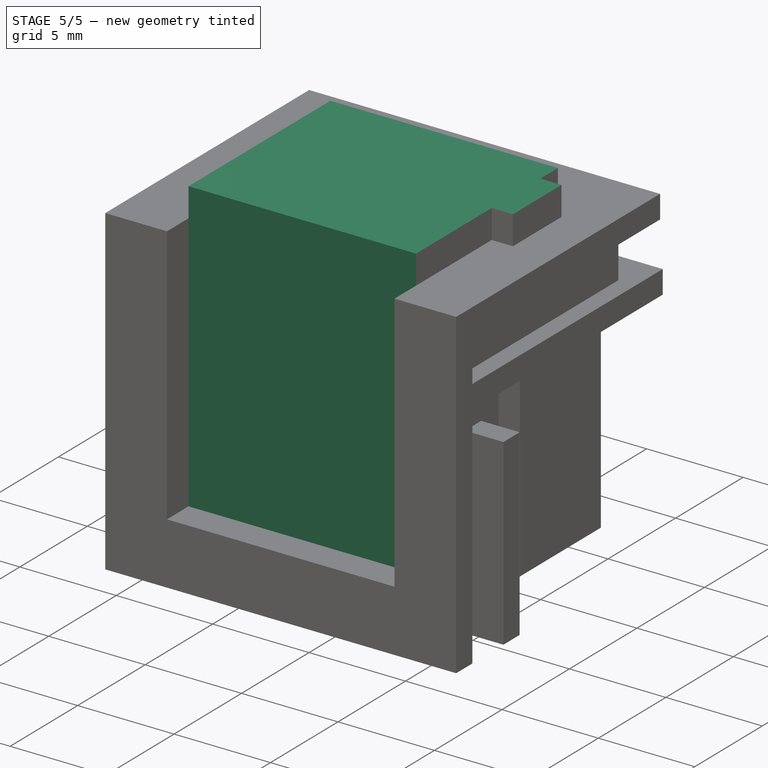
[diagram: stage 5 of 5 — iso view after this stage's code; geometry added in this stage tinted green]
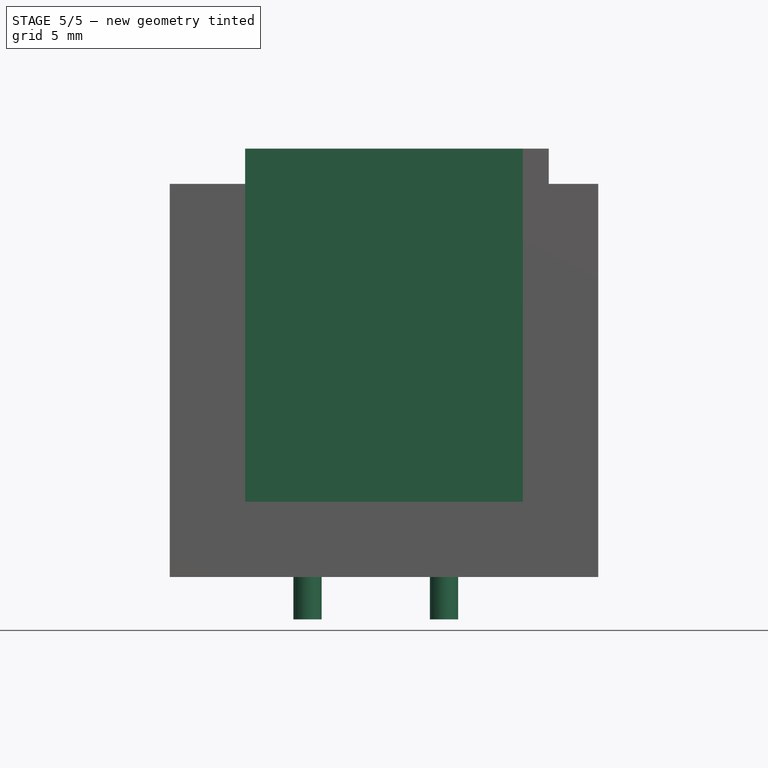
[diagram: stage 5 of 5 — front view after this stage's code; geometry added in this stage tinted green]
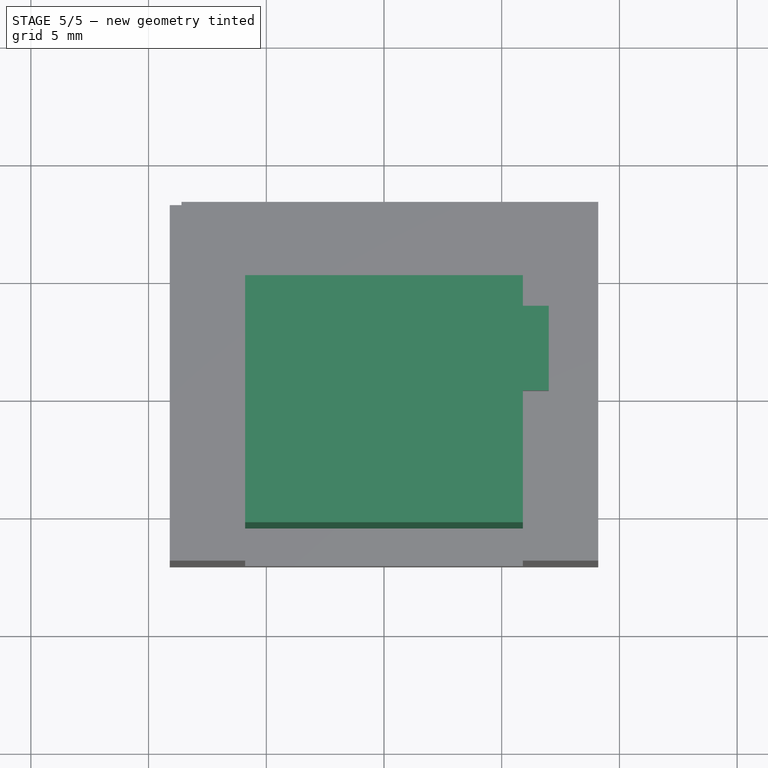
[diagram: stage 5 of 5 — top view after this stage's code; geometry added in this stage tinted green]
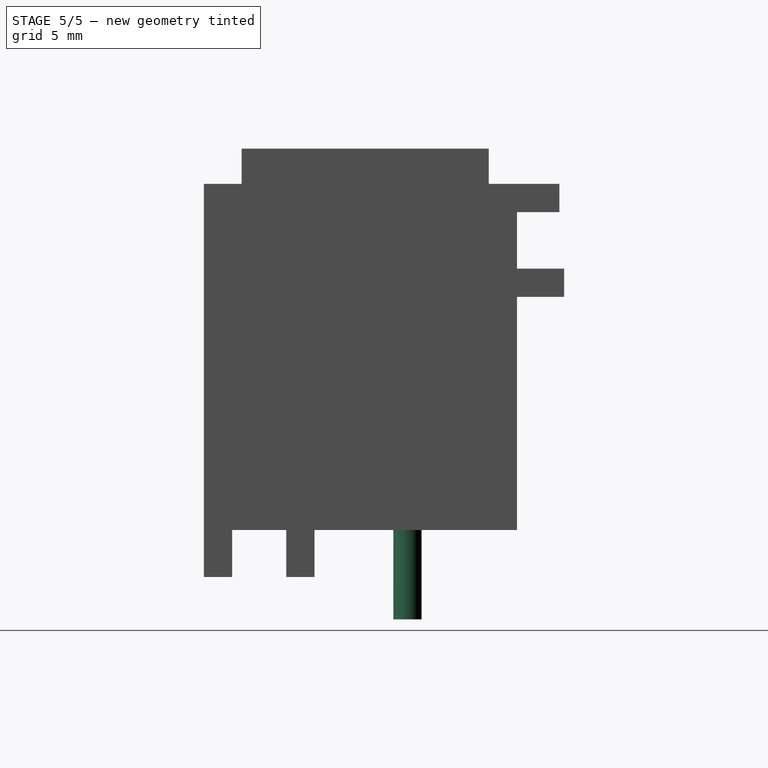
[diagram: stage 5 of 5 — right view after this stage's code; geometry added in this stage tinted green]
FEATURE [Sketcher::SketchObject] Sketch
  sketch-geometry (8):
    g0: LineSegment StartX=-5.9 StartY=0 StartZ=0 EndX=5.9 EndY=0 EndZ=0
    g1: LineSegment StartX=5.9 StartY=-10.5 StartZ=0 EndX=-5.9 EndY=-10.5 EndZ=0
    g2: LineSegment StartX=-5.9 StartY=-10.5 StartZ=0 EndX=-5.9 EndY=0 EndZ=0
    g3: LineSegment StartX=5.9 StartY=-1.3 StartZ=0 EndX=7 EndY=-1.3 EndZ=0
    g4: LineSegment StartX=7 StartY=-1.3 StartZ=0 EndX=7 EndY=-4.9 EndZ=0
    g5: LineSegment StartX=7 StartY=-4.9 StartZ=0 EndX=5.9 EndY=-4.9 EndZ=0
    g6: LineSegment StartX=5.9 StartY=0 StartZ=0 EndX=5.9 EndY=-1.3 EndZ=0
    g7: LineSegment StartX=5.9 StartY=-4.9 StartZ=0 EndX=5.9 EndY=-10.5 EndZ=0
  constraints (23):
    c: Coincident(g1,g2)
    c: Coincident(g2,g0)
    c: Horizontal(g0)
    c: Horizontal(g1)
    c: Vertical(g2)
    c: DistanceX(g0,g0) = 11.8
    c: DistanceY(g1,g0) = 10.5
    c: Symmetric(g0,g0,g-1)
    c: Coincident(g3,g4)
    c: Vertical(g4)
    c: Coincident(g4,g5)
    c: Coincident(g6,g3)
    c: Vertical(g6)
    c: Coincident(g7,g5)
    c: Coincident(g7,g1)
    c: Vertical(g7)
    c: DistanceY(g3,g6) = 1.3
    c: Coincident(g6,g0)
    c: DistanceY(g4,g0) = 4.9
    c: Horizontal(g3)
    c: Horizontal(g5)
    c: DistanceX(g3,g3) = 1.1
    c: Tangent(g6,g7)
FEATURE [PartDesign::Pad] Pad
  Length = 15
  Length2 = 100
  Sketch = -> Sketch
  Type = 0
FEATURE [Sketcher::SketchObject] Sketch001
  ExternalGeometry = -> [Pad]
  Placement = pos=(0,0,0) rot=(1,0,0;3.14159rad)
  Support = -> Pad [Face9]
  sketch-geometry (1):
    g0: Circle CenterX=2.55 CenterY=3.45 CenterZ=0 NormalX=0 NormalY=0 NormalZ=1 Radius=0.6
  constraints (3):
    c: Radius(g0) = 0.6
    c: DistanceY(g0,g-3) = -3.45
    c: DistanceX(g-3,g0) = 8.45
FEATURE [PartDesign::Pad] Pad001
  Length = 5
  Length2 = 100
  Sketch = -> Sketch001
  Type = 0
FEATURE [Sketcher::SketchObject] Sketch002
  ExternalGeometry = -> [Pad001]
  Placement = pos=(0,0,0) rot=(1,0,0;3.14159rad)
  Support = -> Pad001 [Face4]
  sketch-geometry (1):
    g0: Circle CenterX=-3.25 CenterY=3.45 CenterZ=0 NormalX=0 NormalY=0 NormalZ=1 Radius=0.6
  constraints (3):
    c: DistanceY(g-4,g0) = 3.45
    c: Radius(g0) = 0.6
    c: DistanceX(g-4,g0) = 2.65
FEATURE [PartDesign::Pad] Pad002  label="Stecker und Pins"
  Length = 5
  Length2 = 100
  Sketch = -> Sketch002
  Type = 0
FEATURE [Sketcher::SketchObject] Sketch025
  ExternalGeometry = -> [Pocket002]
  Placement = pos=(0,0,-1.2) rot=(1,0,0;3.14159rad)
  Support = -> Pocket002 [Face23]
  sketch-geometry (1):
    g0: Circle CenterX=-3.25 CenterY=3.45 CenterZ=0 NormalX=0 NormalY=0 NormalZ=1 Radius=0.7
  constraints (2):
    c: Coincident(g0,g-3)
    c: Radius(g0) = 0.7
FEATURE [PartDesign::Pocket] Pocket003
  Length = 2
  Placement = pos=(0,0,0) rot=(1,0,0;3.14159rad)
  Sketch = -> Sketch025
  Type = 0
FEATURE [Sketcher::SketchObject] Sketch026
  ExternalGeometry = -> [Pocket003]
  Placement = pos=(0,3.2,0) rot=(-1,0,0;1.5708rad)
  Support = -> Pocket003 [Face16]
  sketch-geometry (4):
    g0: LineSegment StartX=-9.1 StartY=-12.3 StartZ=0 EndX=9.1 EndY=-12.3 EndZ=0
    g1: LineSegment StartX=9.1 StartY=-12.3 StartZ=0 EndX=9.1 EndY=-13.5 EndZ=0
    g2: LineSegment StartX=9.1 StartY=-13.5 StartZ=0 EndX=-9.1 EndY=-13.5 EndZ=0
    g3: LineSegment StartX=-9.1 StartY=-13.5 StartZ=0 EndX=-9.1 EndY=-12.3 EndZ=0
  constraints (10):
    c: Coincident(g0,g1)
    c: Coincident(g1,g2)
    c: Coincident(g2,g3)
    c: Coincident(g3,g0)
    c: Horizontal(g0)
    c: Horizontal(g2)
    c: Vertical(g1)
    c: Vertical(g3)
    c: Coincident(g0,g-3)
    c: Coincident(g1,g-4)
FEATURE [PartDesign::Pocket] Pocket004
  Length = 0.2
  Placement = pos=(0,0,0) rot=(1,0,0;3.14159rad)
  Sketch = -> Sketch026
  Type = 0
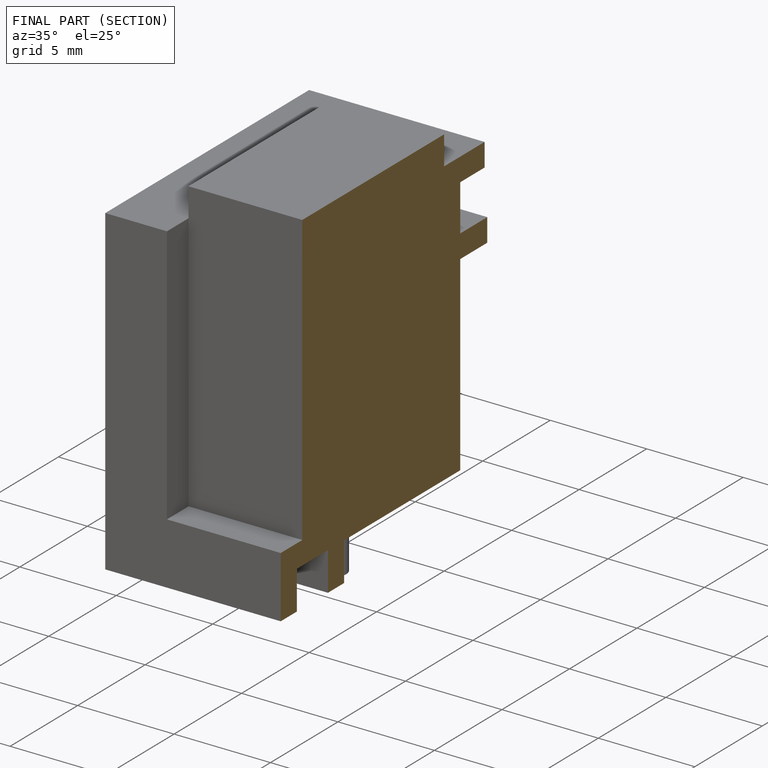
[diagram: finished part — half-section view (interior)]
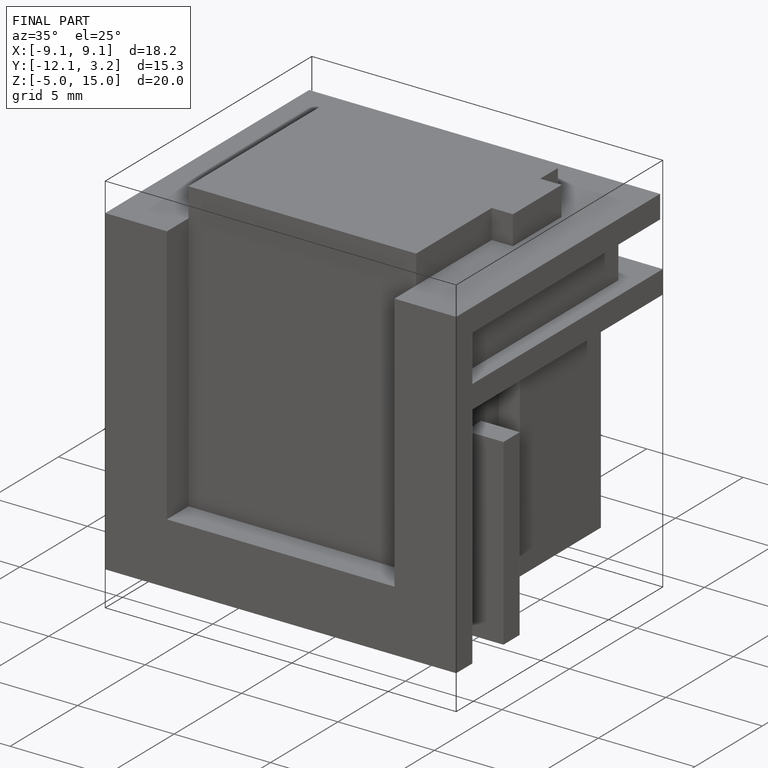
[diagram: finished part — iso view with bounding-box wireframe]
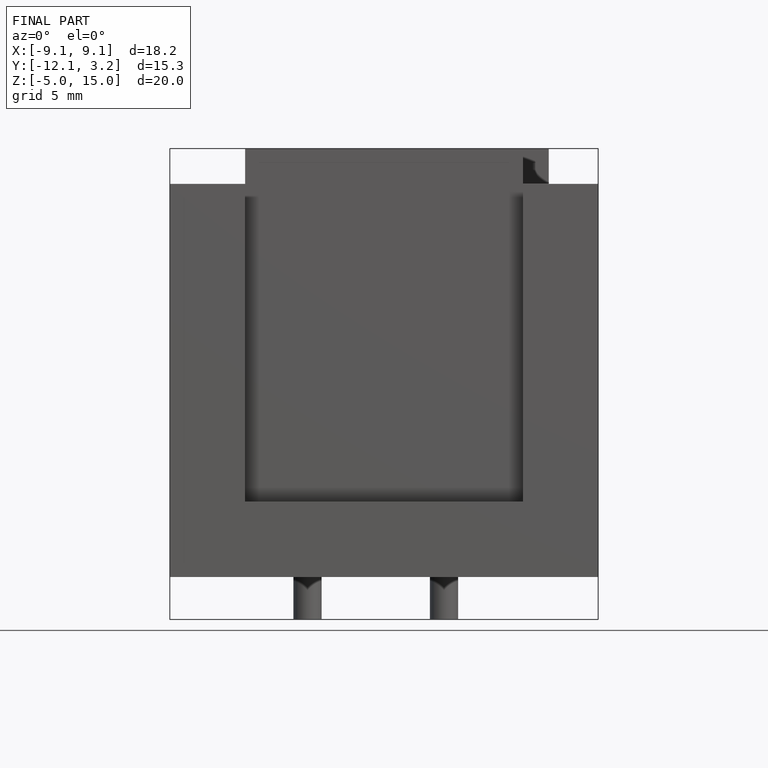
[diagram: finished part — front view with bounding-box wireframe]
